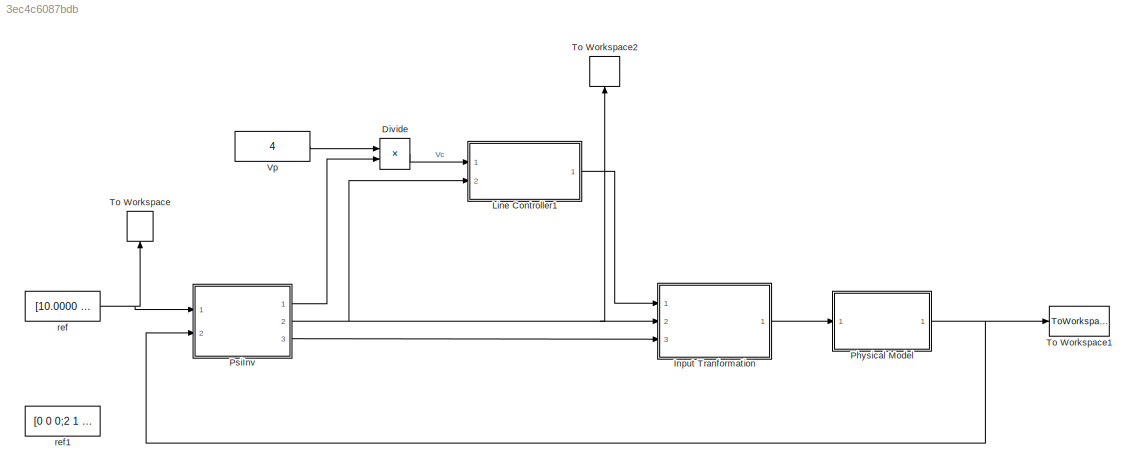
MODEL slx_3ec4c6087bdb
KIND model
CONFIG AbsTol = auto
CONFIG FixedStep = auto
CONFIG MaxStep = auto
CONFIG MinStep = auto
CONFIG RelTol = 1e-3
CONFIG SampleTimeConstraint = Unconstrained
CONFIG Solver = ode45
CONFIG SolverMode = Auto
CONFIG SolverName = ode45
CONFIG StartTime = 0.0
CONFIG StopTime = 5.5
BLOCK [Product] Divide
  InputSameDT = off
  Inputs = */
  OutDataTypeStr = Inherit: Inherit via internal rule
  Ports = [2, 1]
  RndMeth = Floor
  SaturateOnIntegerOverflow = off
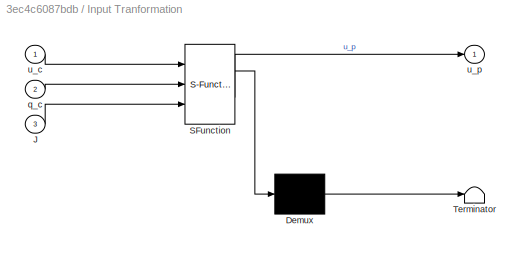
BLOCK [SubSystem] Input Tranformation 
  ErrorFcn = Stateflow.Translate.translate
  PermitHierarchicalResolution = ExplicitOnly
  Ports = [3, 1]
  RequestExecContextInheritance = off
  SFBlockType = MATLAB Function
  TreatAsAtomicUnit = on
  Variant = off
BLOCK [Demux] Input Tranformation / Demux 
  Outputs = 1
  Ports = [1, 1]
BLOCK [S-Function] Input Tranformation / SFunction 
  EnableBusSupport = on
  FunctionName = sf_sfun
  PortCounts = [3 2]
  Ports = [3, 2]
  SFunctionDeploymentMode = off
  Tag = Stateflow S-Function simulation_poly_new 2
BLOCK [Terminator] Input Tranformation / Terminator 
BLOCK [Inport] Input Tranformation /J
  IconDisplay = Port number
  Port = 3
BLOCK [Inport] Input Tranformation /q_c
  IconDisplay = Port number
  Port = 2
BLOCK [Inport] Input Tranformation /u_c
  IconDisplay = Port number
BLOCK [Outport] Input Tranformation /u_p
  IconDisplay = Port number
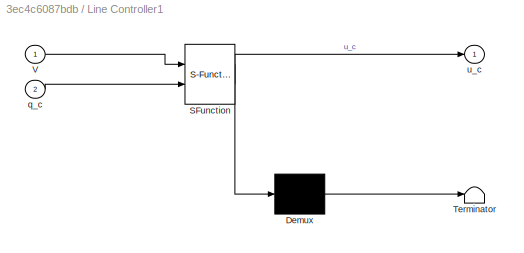
BLOCK [SubSystem] Line Controller1
  ErrorFcn = Stateflow.Translate.translate
  PermitHierarchicalResolution = ExplicitOnly
  Ports = [2, 1]
  RequestExecContextInheritance = off
  SFBlockType = MATLAB Function
  TreatAsAtomicUnit = on
  Variant = off
BLOCK [Demux] Line Controller1/ Demux 
  Outputs = 1
  Ports = [1, 1]
BLOCK [S-Function] Line Controller1/ SFunction 
  EnableBusSupport = on
  FunctionName = sf_sfun
  PortCounts = [2 2]
  Ports = [2, 2]
  SFunctionDeploymentMode = off
  Tag = Stateflow S-Function simulation_poly_new 3
BLOCK [Terminator] Line Controller1/ Terminator 
BLOCK [Inport] Line Controller1/V
  IconDisplay = Port number
BLOCK [Inport] Line Controller1/q_c
  IconDisplay = Port number
  Port = 2
BLOCK [Outport] Line Controller1/u_c
  IconDisplay = Port number
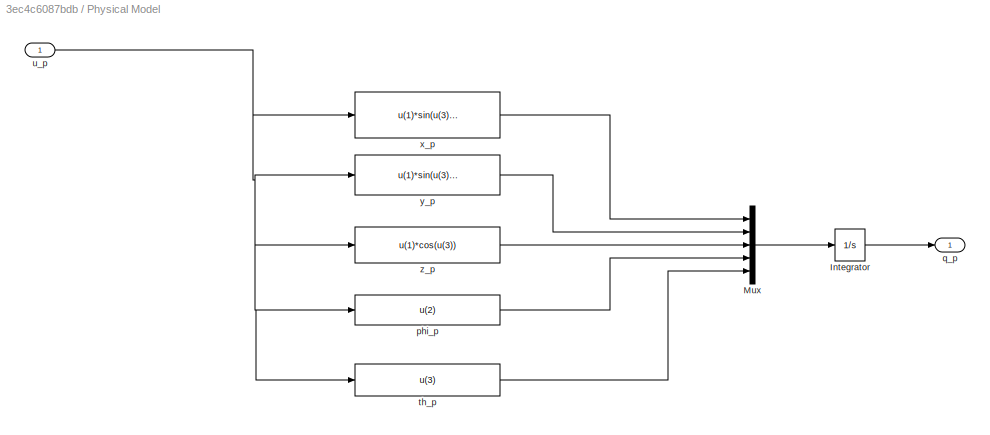
BLOCK [SubSystem] Physical Model
  Ports = [1, 1]
  RequestExecContextInheritance = off
  Variant = off
BLOCK [Integrator] Physical Model/Integrator
  InitialCondition = [9 -0.8 -0.5 pi/2 pi/9]
  LowerSaturationLimit = -1000
  Ports = [1, 1]
  UpperSaturationLimit = 1000
BLOCK [Mux] Physical Model/Mux
  DisplayOption = bar
  Inputs = 5
  Ports = [5, 1]
BLOCK [Fcn] Physical Model/phi_p
  Expr = u(2)
BLOCK [Outport] Physical Model/q_p
  IconDisplay = Port number
BLOCK [Fcn] Physical Model/th_p
  Expr = u(3)
BLOCK [Inport] Physical Model/u_p
  IconDisplay = Port number
BLOCK [Fcn] Physical Model/x_p 
  Expr = u(1)*sin(u(3))*cos(u(2))
BLOCK [Fcn] Physical Model/y_p
  Expr = u(1)*sin(u(3))*sin(u(2))
BLOCK [Fcn] Physical Model/z_p
  Expr = u(1)*cos(u(3))
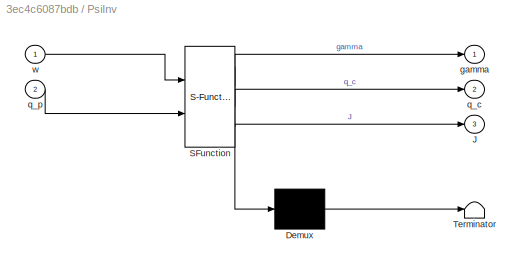
BLOCK [SubSystem] PsiInv
  ErrorFcn = Stateflow.Translate.translate
  PermitHierarchicalResolution = ExplicitOnly
  Ports = [2, 3]
  RequestExecContextInheritance = off
  SFBlockType = MATLAB Function
  TreatAsAtomicUnit = on
  Variant = off
BLOCK [Demux] PsiInv/ Demux 
  Outputs = 1
  Ports = [1, 1]
BLOCK [S-Function] PsiInv/ SFunction 
  EnableBusSupport = on
  FunctionName = sf_sfun
  PortCounts = [2 4]
  Ports = [2, 4]
  SFunctionDeploymentMode = off
  Tag = Stateflow S-Function simulation_poly_new 1
BLOCK [Terminator] PsiInv/ Terminator 
BLOCK [Outport] PsiInv/J
  IconDisplay = Port number
  Port = 3
BLOCK [Outport] PsiInv/gamma
  IconDisplay = Port number
BLOCK [Outport] PsiInv/q_c
  IconDisplay = Port number
  Port = 2
BLOCK [Inport] PsiInv/q_p
  IconDisplay = Port number
  Port = 2
BLOCK [Inport] PsiInv/w
  IconDisplay = Port number
BLOCK [ToWorkspace] To Workspace
  FixptAsFi = on
  MaxDataPoints = inf
  Ports = [1]
  SampleTime = -1
  Save2DSignal = 3-D array (concatenate along third dimension)
  SaveFormat = Timeseries
  VariableName = w
BLOCK [ToWorkspace] To Workspace1
  FixptAsFi = on
  MaxDataPoints = inf
  Ports = [1]
  SampleTime = -1
  Save2DSignal = 3-D array (concatenate along third dimension)
  SaveFormat = Timeseries
  VariableName = qp
BLOCK [ToWorkspace] To Workspace2
  FixptAsFi = on
  MaxDataPoints = inf
  Ports = [1]
  SampleTime = -1
  Save2DSignal = 3-D array (concatenate along third dimension)
  SaveFormat = Timeseries
  VariableName = qc
BLOCK [Constant] Vp
  Value = 4
BLOCK [Constant] ref
  LockScale = on
  Value = [10.0000         0    1.0000;\n   10.6964    0.6235    0.7818;\n   11.4412    0.9749    0.2225\n;   12.2380    0.9010   -0.4339\n  ; 13.0902    0.4339   -0.9010\n;   14.0018   -0.2225   -0.9749;\n   14.9768   -0.7818   -0.6235\n;   16.0198   -1.0000   -0.0000\n  ; 17.1354   -0.7818    0.6235\n;   18.3286   -0.2225    0.9749\n ;  19.6050    0.4339    0.9010\n ;  20.9702    0.9010    0.4339\n ;  22.4305    0.97...<+78ch>
  VectorParams1D = off
BLOCK [Constant] ref1
  LockScale = on
  Value = [0 0 0;2 1 3; 3 3 4; 4 6 5; 7 8 6; 9 10 7; 12 11 8; 13 13 10]'
  VectorParams1D = off
LINE Divide:1 -> Line Controller1:1
LINE Input Tranformation :1 -> Physical Model:1
LINE Line Controller1:1 -> Input Tranformation :1
LINE Physical Model/Integrator:1 -> Physical Model/q_p:1
LINE Physical Model/Mux:1 -> Physical Model/Integrator:1
LINE Physical Model/phi_p:1 -> Physical Model/Mux:4
LINE Physical Model/th_p:1 -> Physical Model/Mux:5
NET Physical Model/u_p:1 -> Physical Model/phi_p:1, Physical Model/th_p:1, Physical Model/x_p :1, Physical Model/y_p:1, Physical Model/z_p:1
LINE Physical Model/x_p :1 -> Physical Model/Mux:1
LINE Physical Model/y_p:1 -> Physical Model/Mux:2
LINE Physical Model/z_p:1 -> Physical Model/Mux:3
NET Physical Model:1 -> PsiInv:2, To Workspace1:1
LINE PsiInv:1 -> Divide:2
NET PsiInv:2 -> Input Tranformation :2, Line Controller1:2, To Workspace2:1
LINE PsiInv:3 -> Input Tranformation :3
LINE Vp:1 -> Divide:1
NET ref:1 -> PsiInv:1, To Workspace:1
note: NET lines group one-source signal fan-out (src -> all destinations, sorted); 1:1 wires keep LINE
CHART PsiInv states=1 transitions=1
  STATE_LABEL 'eML_blk_kernel()'
  STATE_LABEL "SCRIPT:\nfunction [gamma,q_c, J]   = PsiInv(w,q_p)\n    \n%     w = zeros(3,10);\n%     w = [0 0 0;2 1 3; 3 3 4; 4 6 5; 7 8 6; 9 10 7; 12 11 8; 13 13 10]';\n    persistent a Ss  \n    Ss=sum(diff(w,1,2).^2);\n    a=[0 cumsum(Ss)/sum(Ss)];\n% a = [0 0.1658 0.2744 0.4213 0.5871 0.7201 0.8671 1];\n    \n    rp = q_p(1:3,1);\n    n = max(size(w));\n    v = zeros(3,n-1);\n    S = 0;\n    \n    % Compute v and S\n    f...<+1415ch>"
CHART Input Tranformation
 states=1 transitions=1
  STATE_LABEL 'eML_blk_kernel()'
  STATE_LABEL "SCRIPT:\nfunction u_p = M(u_c,q_c,J)\n    \n    % Initialization\n    C = zeros(2,3);\n    D = eye(2);\n    M = eye(3);\n    Jd = zeros(3,3);\n    \n    % Construct needed elements of Cartesian tensor\n    e12=[1 0 0]'*[0 1 0];\n    e21=[0 1 0]'*[1 0 0];\n    e33=[0 0 1]'*[0 0 1];\n    \n    % Get canonical angles\n    th_c = q_c(5);\n    phi_c = q_c(4);    \n    \n    % Construct the vector cc and its derivatives\n...<+1256ch>"
CHART Line Controller1 states=1 transitions=1
  STATE_LABEL 'eML_blk_kernel()'
  STATE_LABEL 'SCRIPT:\nfunction u_c = LineCon(V,q_c)\n\n    K2 = -0.04*[1;0;0]; \n    r_c = [0; q_c(2); q_c(3)];\n        \n    v = -5*r_c - K2;\n    v=V*v/norm(v);\n    \n    u_c = [ V; \n            atan2(v(2),v(1));\n            acos(v(3)/V)];  \n        \nend'
